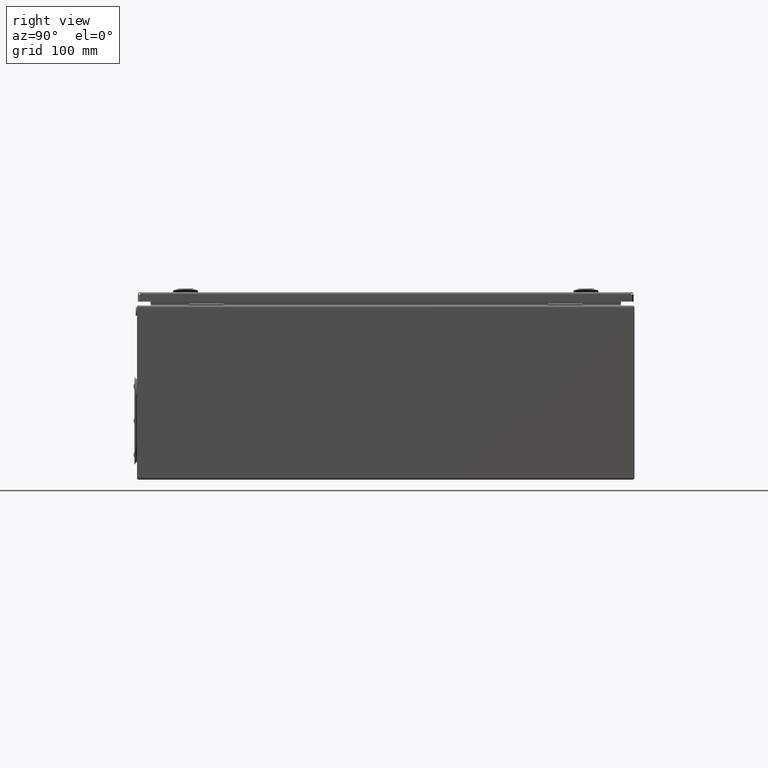
[diagram: clean part render]
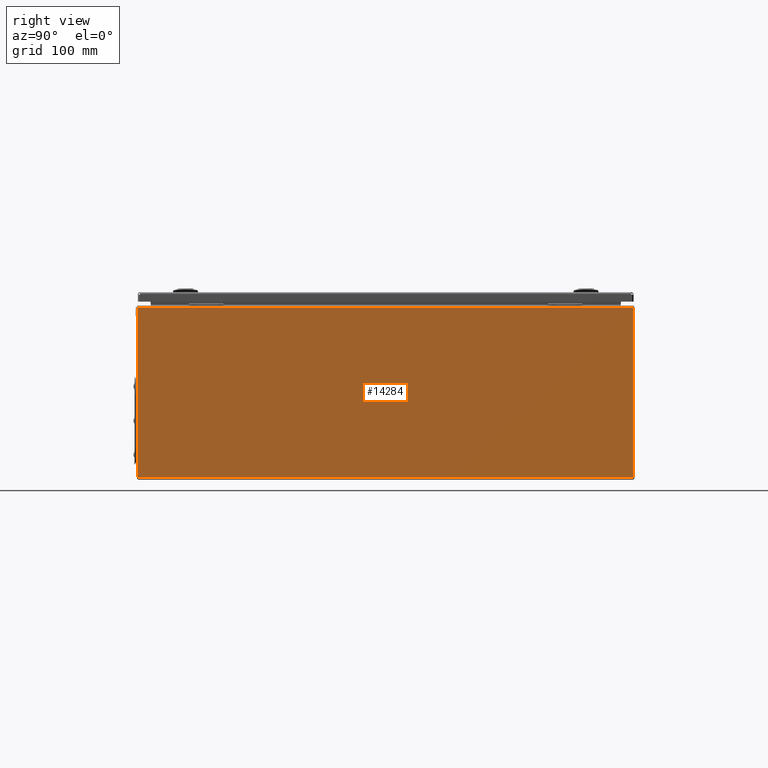
[diagram: same view with one face highlighted and labeled with its STEP entity id]
A machine part, right view. The second image highlights one B-rep face of the part: STEP entity #14284.
In plain terms, the highlighted planar face has unit normal (1, 0, -0).
Its self-contained STEP definition (entity closure, byte-faithful):
#2992 = CARTESIAN_POINT ( 'NONE',  ( 400.0000000000000600, 398.4992928932688900, 3.000000000000002700 ) ) ;
#3038 = CARTESIAN_POINT ( 'NONE',  ( 400.0000000000028400, -398.4992928932230700, 276.5018117420098100 ) ) ;
#3047 = DIRECTION ( 'NONE',  ( 0.0000000000000000000, 0.0000000000000000000, -1.000000000000000000 ) ) ;
#3048 = DIRECTION ( 'NONE',  ( -1.000000000000000000, -7.331217975240002700E-015, 2.785656742437538200E-015 ) ) ;
#3049 = CARTESIAN_POINT ( 'NONE',  ( 399.9999999999970400, 393.4992928932612700, 276.5018117420098600 ) ) ;
#3050 = AXIS2_PLACEMENT_3D ( 'NONE', #3049, #3048, #3047 ) ;
#3051 = CIRCLE ( 'NONE', #3050, 4.999999999972971000 ) ;
#3109 = DIRECTION ( 'NONE',  ( 0.0000000000000000000, 1.000000000000000000, 0.0000000000000000000 ) ) ;
#3110 = VECTOR ( 'NONE', #3109, 1000.000000000000000 ) ;
#3111 = CARTESIAN_POINT ( 'NONE',  ( 400.0000000000001100, -4383.492221825707000, 277.0000000000000000 ) ) ;
#3112 = LINE ( 'NONE', #3111, #3110 ) ;
#3113 = CARTESIAN_POINT ( 'NONE',  ( 399.9999999999969900, 398.4744118324757100, 277.0000000000000000 ) ) ;
#3121 = DIRECTION ( 'NONE',  ( -2.004012679828802300E-016, 0.0000000000000000000, -1.000000000000000000 ) ) ;
#3122 = VECTOR ( 'NONE', #3121, 1000.000000000000000 ) ;
#3123 = CARTESIAN_POINT ( 'NONE',  ( 400.0000000000001100, -398.4992928932271600, 278.5000000000000000 ) ) ;
#3124 = LINE ( 'NONE', #3123, #3122 ) ;
#3125 = CARTESIAN_POINT ( 'NONE',  ( 400.0000000000000600, -398.4992928932271600, 3.000000000000002700 ) ) ;
#3130 = DIRECTION ( 'NONE',  ( 0.0000000000000000000, 1.000000000000000000, 0.0000000000000000000 ) ) ;
#3131 = VECTOR ( 'NONE', #3130, 1000.000000000000000 ) ;
#3132 = CARTESIAN_POINT ( 'NONE',  ( 400.0000000000000600, -4383.500000000000900, 3.000000000000002700 ) ) ;
#3133 = LINE ( 'NONE', #3132, #3131 ) ;
#3134 = CARTESIAN_POINT ( 'NONE',  ( 400.0000000000028400, -398.4744118324646300, 277.0000000000000000 ) ) ;
#3135 = DIRECTION ( 'NONE',  ( 1.110223024623713400E-014, -1.000000000000000000, 0.0000000000000000000 ) ) ;
#3136 = DIRECTION ( 'NONE',  ( -1.000000000000000000, -7.304595296686590600E-015, 2.004012679828802500E-016 ) ) ;
#3137 = CARTESIAN_POINT ( 'NONE',  ( 400.0000000000027900, -393.4992928932164800, 276.5018117420098100 ) ) ;
#3138 = AXIS2_PLACEMENT_3D ( 'NONE', #3137, #3136, #3135 ) ;
#3139 = CIRCLE ( 'NONE', #3138, 5.000000000006499700 ) ;
#3140 = DIRECTION ( 'NONE',  ( -2.004012679828802300E-016, 0.0000000000000000000, -1.000000000000000000 ) ) ;
#3141 = DIRECTION ( 'NONE',  ( 1.000000000000000000, 0.0000000000000000000, -2.004012679828802300E-016 ) ) ;
#3142 = CARTESIAN_POINT ( 'NONE',  ( 400.0000000000001100, -4383.500000000000900, 278.5000000000000000 ) ) ;
#3143 = AXIS2_PLACEMENT_3D ( 'NONE', #3142, #3141, #3140 ) ;
#3144 = PLANE ( 'NONE',  #3143 ) ;
#3145 = FACE_OUTER_BOUND ( 'NONE', #14285, .T. ) ;
#3171 = DIRECTION ( 'NONE',  ( 2.004012679828802300E-016, 0.0000000000000000000, 1.000000000000000000 ) ) ;
#3172 = VECTOR ( 'NONE', #3171, 1000.000000000000000 ) ;
#3173 = CARTESIAN_POINT ( 'NONE',  ( 400.0000000000001100, 398.4992928932688900, 278.5000000000000000 ) ) ;
#3174 = LINE ( 'NONE', #3173, #3172 ) ;
#3176 = CARTESIAN_POINT ( 'NONE',  ( 399.9999999999970400, 398.4992928932342100, 276.5018117420098600 ) ) ;
#14197 = VERTEX_POINT ( 'NONE', #2992 ) ;
#14219 = VERTEX_POINT ( 'NONE', #3038 ) ;
#14260 = EDGE_CURVE ( 'NONE', #14261, #14310, #3051, .T. ) ;
#14261 = VERTEX_POINT ( 'NONE', #3113 ) ;
#14263 = ORIENTED_EDGE ( 'NONE', *, *, #14265, .F. ) ;
#14265 = EDGE_CURVE ( 'NONE', #14288, #14261, #3112, .T. ) ;
#14284 = ADVANCED_FACE ( 'NONE', ( #3145 ), #3144, .T. ) ;
#14285 = EDGE_LOOP ( 'NONE', ( #14286, #14290, #14291, #14296, #14380, #14263 ) ) ;
#14286 = ORIENTED_EDGE ( 'NONE', *, *, #14287, .F. ) ;
#14287 = EDGE_CURVE ( 'NONE', #14219, #14288, #3139, .T. ) ;
#14288 = VERTEX_POINT ( 'NONE', #3134 ) ;
#14290 = ORIENTED_EDGE ( 'NONE', *, *, #14304, .T. ) ;
#14291 = ORIENTED_EDGE ( 'NONE', *, *, #14293, .T. ) ;
#14293 = EDGE_CURVE ( 'NONE', #14301, #14197, #3133, .T. ) ;
#14296 = ORIENTED_EDGE ( 'NONE', *, *, #14315, .T. ) ;
#14301 = VERTEX_POINT ( 'NONE', #3125 ) ;
#14304 = EDGE_CURVE ( 'NONE', #14219, #14301, #3124, .T. ) ;
#14310 = VERTEX_POINT ( 'NONE', #3176 ) ;
#14315 = EDGE_CURVE ( 'NONE', #14197, #14310, #3174, .T. ) ;
#14380 = ORIENTED_EDGE ( 'NONE', *, *, #14260, .F. ) ;